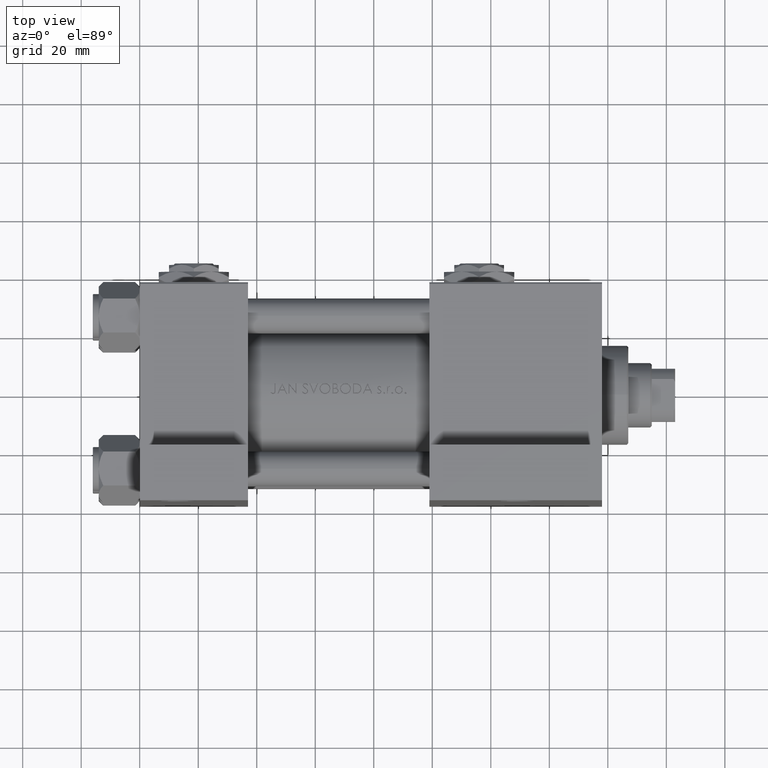
[diagram: clean part render]
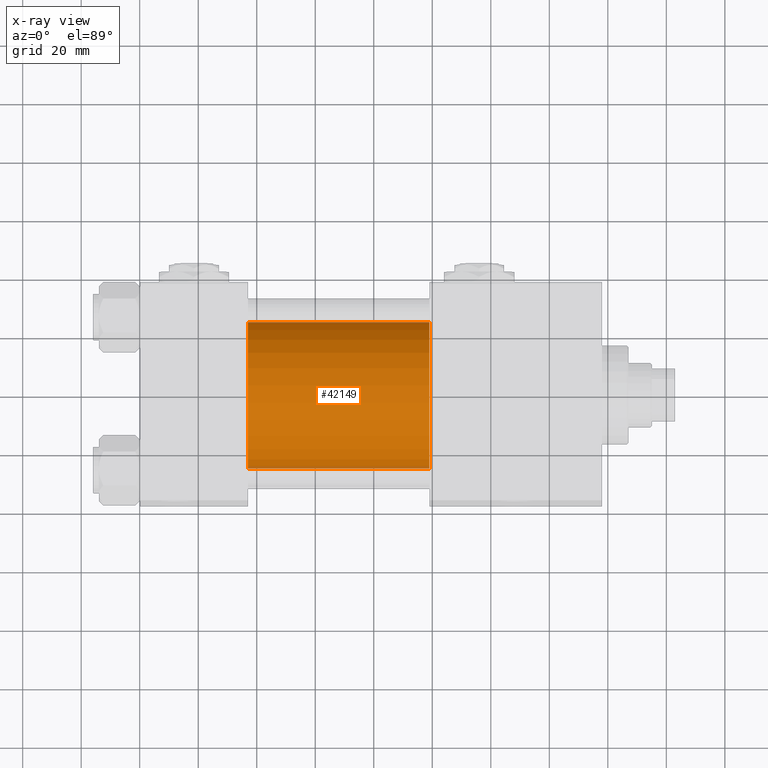
[diagram: x-ray — body ghosted, one internal face saturated and labeled with its STEP entity id]
A machine part, top view, then the same camera in x-ray: the body is ghosted and one INTERNAL B-rep face — a face not visible from any outside direction — is saturated and labeled: STEP entity #42149.
In plain terms, the highlighted cylindrical surface (partial cylindrical patch) has radius 25 mm, axis along (-1, -0, 0).
Its self-contained STEP definition (entity closure, byte-faithful):
#1098 = LINE ( 'NONE', #30615, #38083 ) ;
#2916 = CARTESIAN_POINT ( 'NONE',  ( 37.00000000000000000, 0.000000000000000000, 24.50000000000000000 ) ) ;
#3321 = EDGE_LOOP ( 'NONE', ( #3750, #43330, #30073, #32896 ) ) ;
#3750 = ORIENTED_EDGE ( 'NONE', *, *, #20487, .T. ) ;
#5595 = CIRCLE ( 'NONE', #19077, 25.00000000000000000 ) ;
#6475 = DIRECTION ( 'NONE',  ( -1.000000000000000000, -0.000000000000000000, -0.000000000000000000 ) ) ;
#6488 = AXIS2_PLACEMENT_3D ( 'NONE', #45279, #27188, #19026 ) ;
#9087 = CARTESIAN_POINT ( 'NONE',  ( 37.00000000000000000, 3.061616997868383043E-15, -25.50000000000000355 ) ) ;
#13267 = CYLINDRICAL_SURFACE ( 'NONE', #20727, 25.00000000000000000 ) ;
#13494 = CARTESIAN_POINT ( 'NONE',  ( 99.00000000000000000, 3.061616997868383043E-15, -25.50000000000000355 ) ) ;
#14484 = EDGE_CURVE ( 'NONE', #33466, #45208, #1098, .T. ) ;
#17228 = CARTESIAN_POINT ( 'NONE',  ( 99.00000000000000000, 0.000000000000000000, -0.5000000000000004441 ) ) ;
#17475 = DIRECTION ( 'NONE',  ( 0.000000000000000000, 0.000000000000000000, 1.000000000000000000 ) ) ;
#19026 = DIRECTION ( 'NONE',  ( 0.000000000000000000, 0.000000000000000000, -1.000000000000000000 ) ) ;
#19077 = AXIS2_PLACEMENT_3D ( 'NONE', #47831, #43852, #40386 ) ;
#20487 = EDGE_CURVE ( 'NONE', #24683, #33466, #27862, .T. ) ;
#20727 = AXIS2_PLACEMENT_3D ( 'NONE', #17228, #25411, #17475 ) ;
#22578 = EDGE_CURVE ( 'NONE', #24683, #41282, #25329, .T. ) ;
#23798 = CARTESIAN_POINT ( 'NONE',  ( 99.00000000000000000, 0.000000000000000000, 24.50000000000000000 ) ) ;
#24683 = VERTEX_POINT ( 'NONE', #23798 ) ;
#25329 = LINE ( 'NONE', #40419, #30303 ) ;
#25411 = DIRECTION ( 'NONE',  ( -1.000000000000000000, -0.000000000000000000, -0.000000000000000000 ) ) ;
#26913 = DIRECTION ( 'NONE',  ( -1.000000000000000000, -0.000000000000000000, -0.000000000000000000 ) ) ;
#27188 = DIRECTION ( 'NONE',  ( 1.000000000000000000, 0.000000000000000000, 0.000000000000000000 ) ) ;
#27862 = CIRCLE ( 'NONE', #6488, 25.00000000000000000 ) ;
#30073 = ORIENTED_EDGE ( 'NONE', *, *, #37380, .F. ) ;
#30303 = VECTOR ( 'NONE', #6475, 1000.000000000000000 ) ;
#30615 = CARTESIAN_POINT ( 'NONE',  ( 99.00000000000000000, 3.061616997868383043E-15, -25.50000000000000355 ) ) ;
#32826 = FACE_OUTER_BOUND ( 'NONE', #3321, .T. ) ;
#32896 = ORIENTED_EDGE ( 'NONE', *, *, #22578, .F. ) ;
#33466 = VERTEX_POINT ( 'NONE', #13494 ) ;
#37380 = EDGE_CURVE ( 'NONE', #41282, #45208, #5595, .T. ) ;
#38083 = VECTOR ( 'NONE', #26913, 1000.000000000000000 ) ;
#40386 = DIRECTION ( 'NONE',  ( 0.000000000000000000, 0.000000000000000000, -1.000000000000000000 ) ) ;
#40419 = CARTESIAN_POINT ( 'NONE',  ( 99.00000000000000000, 0.000000000000000000, 24.50000000000000000 ) ) ;
#41282 = VERTEX_POINT ( 'NONE', #2916 ) ;
#42149 = ADVANCED_FACE ( 'NONE', ( #32826 ), #13267, .F. ) ;
#43330 = ORIENTED_EDGE ( 'NONE', *, *, #14484, .T. ) ;
#43852 = DIRECTION ( 'NONE',  ( 1.000000000000000000, 0.000000000000000000, 0.000000000000000000 ) ) ;
#45208 = VERTEX_POINT ( 'NONE', #9087 ) ;
#45279 = CARTESIAN_POINT ( 'NONE',  ( 99.00000000000000000, 0.000000000000000000, -0.5000000000000004441 ) ) ;
#47831 = CARTESIAN_POINT ( 'NONE',  ( 37.00000000000000000, 0.000000000000000000, -0.5000000000000004441 ) ) ;